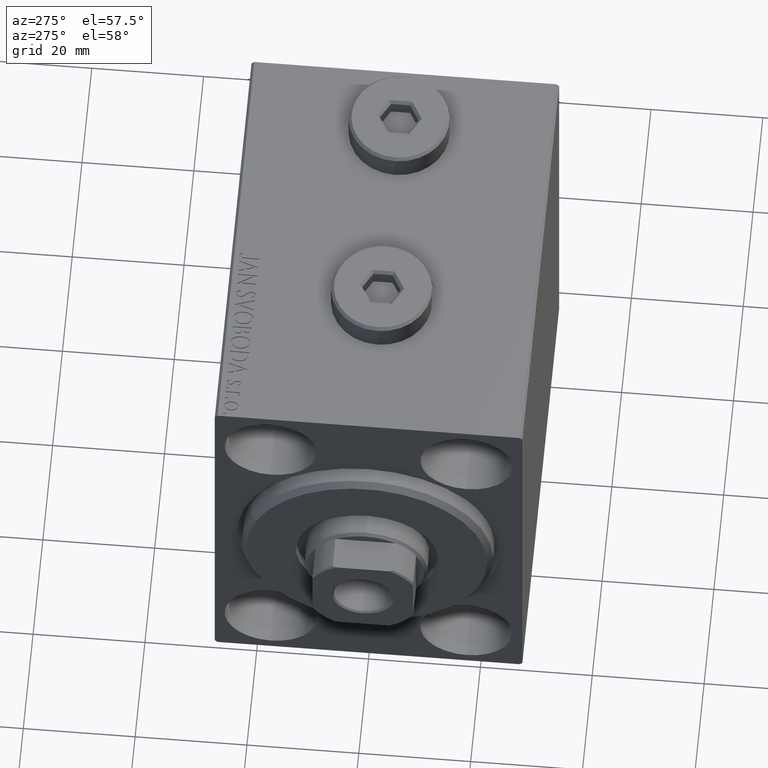
[diagram: clean part render]
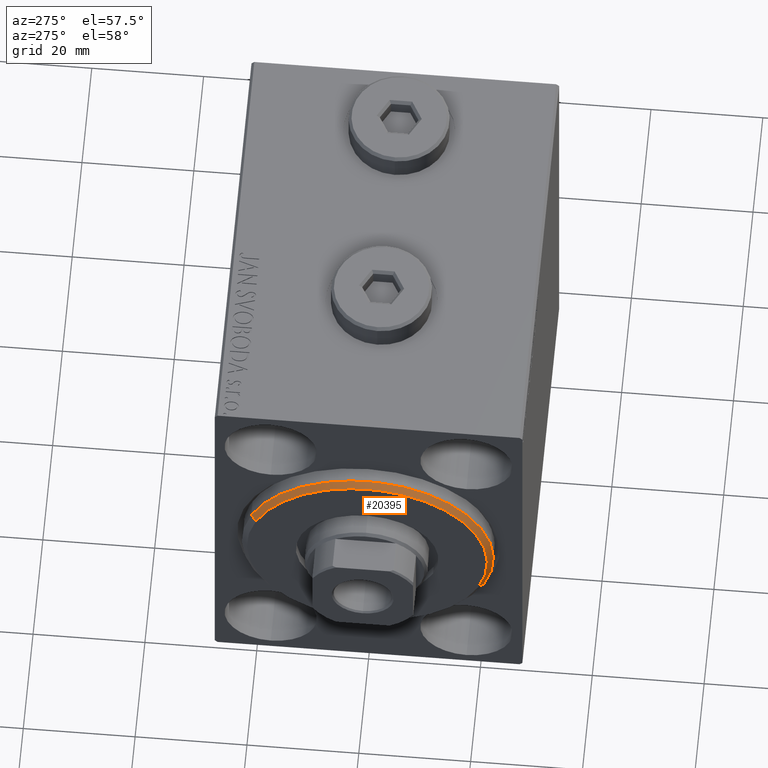
[diagram: same view with one face highlighted and labeled with its STEP entity id]
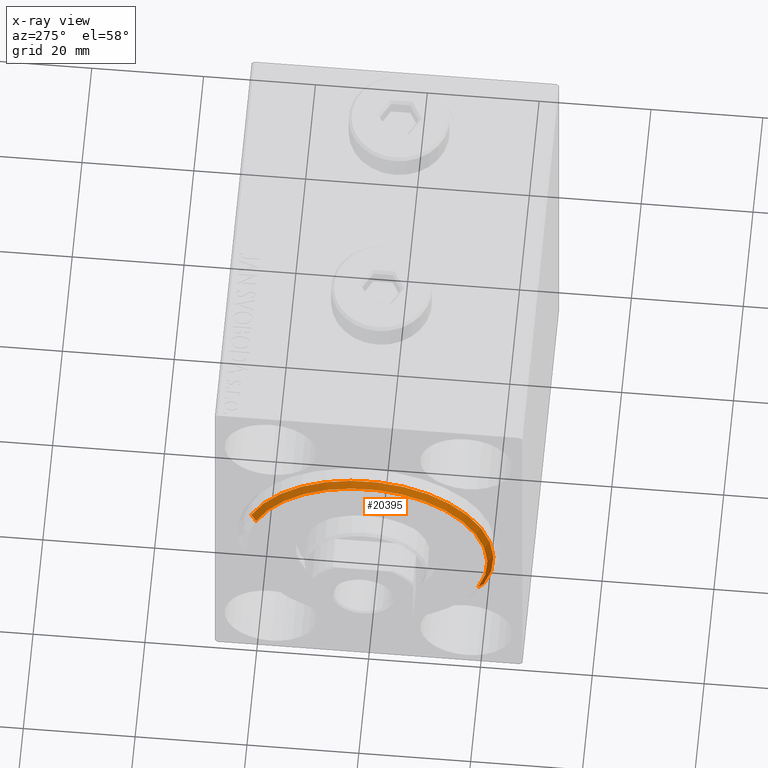
[diagram: x-ray of the same camera — body ghosted, the highlighted face saturated]
A machine part, auxiliary view. The second image highlights one B-rep face of the part: STEP entity #20395.
The next image is the same camera in x-ray: the body ghosted, the highlighted face saturated — about 0% of this face is hidden behind the body in this view.
In plain terms, the highlighted conical surface has half-angle 45 deg.
Its self-contained STEP definition (entity closure, byte-faithful):
#4520 = EDGE_LOOP ( 'NONE', ( #37824, #16394, #21650, #11382 ) ) ;
#4995 = CARTESIAN_POINT ( 'NONE',  ( 3.000000000000000000, 2.632990618166810024E-15, -21.50000000000000355 ) ) ;
#7138 = EDGE_CURVE ( 'NONE', #34976, #37634, #15945, .T. ) ;
#8042 = DIRECTION ( 'NONE',  ( 0.000000000000000000, 0.000000000000000000, -1.000000000000000000 ) ) ;
#8196 = DIRECTION ( 'NONE',  ( -0.7071067811865487940, 8.659560562354919300E-17, -0.7071067811865463515 ) ) ;
#9239 = DIRECTION ( 'NONE',  ( 0.000000000000000000, 0.000000000000000000, 1.000000000000000000 ) ) ;
#11382 = ORIENTED_EDGE ( 'NONE', *, *, #23175, .F. ) ;
#11390 = AXIS2_PLACEMENT_3D ( 'NONE', #18794, #32937, #8042 ) ;
#11467 = CARTESIAN_POINT ( 'NONE',  ( 3.000000000000000000, 0.000000000000000000, 21.50000000000000355 ) ) ;
#13120 = CARTESIAN_POINT ( 'NONE',  ( 3.000000000000000000, 0.000000000000000000, 0.000000000000000000 ) ) ;
#13513 = CARTESIAN_POINT ( 'NONE',  ( 1.999999999999999112, 2.755455298081545172E-15, -22.50000000000000355 ) ) ;
#13964 = AXIS2_PLACEMENT_3D ( 'NONE', #33338, #23489, #15978 ) ;
#15263 = DIRECTION ( 'NONE',  ( -0.7071067811865487940, 0.000000000000000000, 0.7071067811865463515 ) ) ;
#15771 = CIRCLE ( 'NONE', #11390, 21.50000000000000355 ) ;
#15945 = LINE ( 'NONE', #25981, #40397 ) ;
#15978 = DIRECTION ( 'NONE',  ( 0.000000000000000000, 0.000000000000000000, -1.000000000000000000 ) ) ;
#16394 = ORIENTED_EDGE ( 'NONE', *, *, #44106, .F. ) ;
#18794 = CARTESIAN_POINT ( 'NONE',  ( 3.000000000000000000, 0.000000000000000000, 0.000000000000000000 ) ) ;
#20395 = ADVANCED_FACE ( 'NONE', ( #30480 ), #31937, .T. ) ;
#21650 = ORIENTED_EDGE ( 'NONE', *, *, #7138, .T. ) ;
#22712 = EDGE_CURVE ( 'NONE', #24915, #23672, #25994, .T. ) ;
#23175 = EDGE_CURVE ( 'NONE', #23672, #37634, #36572, .T. ) ;
#23489 = DIRECTION ( 'NONE',  ( -1.000000000000000000, 0.000000000000000000, 0.000000000000000000 ) ) ;
#23672 = VERTEX_POINT ( 'NONE', #13513 ) ;
#24915 = VERTEX_POINT ( 'NONE', #36269 ) ;
#25981 = CARTESIAN_POINT ( 'NONE',  ( 3.000000000000000000, 0.000000000000000000, 21.50000000000000355 ) ) ;
#25994 = LINE ( 'NONE', #4995, #32923 ) ;
#27027 = DIRECTION ( 'NONE',  ( -1.000000000000000000, 0.000000000000000000, 0.000000000000000000 ) ) ;
#30480 = FACE_OUTER_BOUND ( 'NONE', #4520, .T. ) ;
#31937 = CONICAL_SURFACE ( 'NONE', #42929, 21.50000000000000355, 0.7853981633974466137 ) ;
#32923 = VECTOR ( 'NONE', #8196, 1000.000000000000000 ) ;
#32937 = DIRECTION ( 'NONE',  ( 1.000000000000000000, -0.000000000000000000, 0.000000000000000000 ) ) ;
#33338 = CARTESIAN_POINT ( 'NONE',  ( 1.999999999999999112, 0.000000000000000000, 0.000000000000000000 ) ) ;
#34976 = VERTEX_POINT ( 'NONE', #11467 ) ;
#36269 = CARTESIAN_POINT ( 'NONE',  ( 3.000000000000000000, 2.694222958124177598E-15, -21.50000000000000355 ) ) ;
#36572 = CIRCLE ( 'NONE', #13964, 22.50000000000000355 ) ;
#37634 = VERTEX_POINT ( 'NONE', #39650 ) ;
#37824 = ORIENTED_EDGE ( 'NONE', *, *, #22712, .F. ) ;
#39650 = CARTESIAN_POINT ( 'NONE',  ( 1.999999999999999112, 0.000000000000000000, 22.50000000000000355 ) ) ;
#40397 = VECTOR ( 'NONE', #15263, 1000.000000000000000 ) ;
#42929 = AXIS2_PLACEMENT_3D ( 'NONE', #13120, #27027, #9239 ) ;
#44106 = EDGE_CURVE ( 'NONE', #34976, #24915, #15771, .T. ) ;